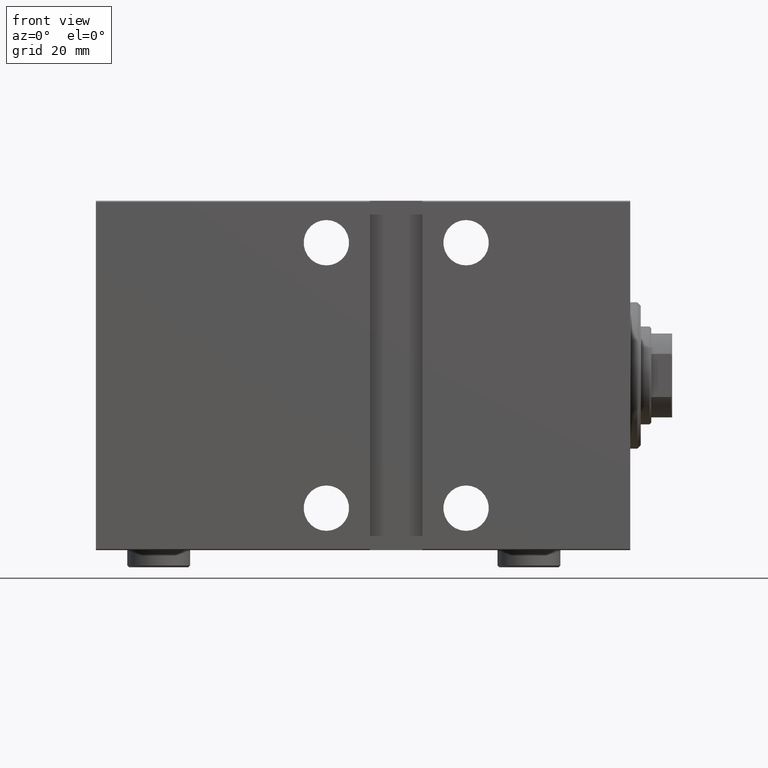
[diagram: clean part render]
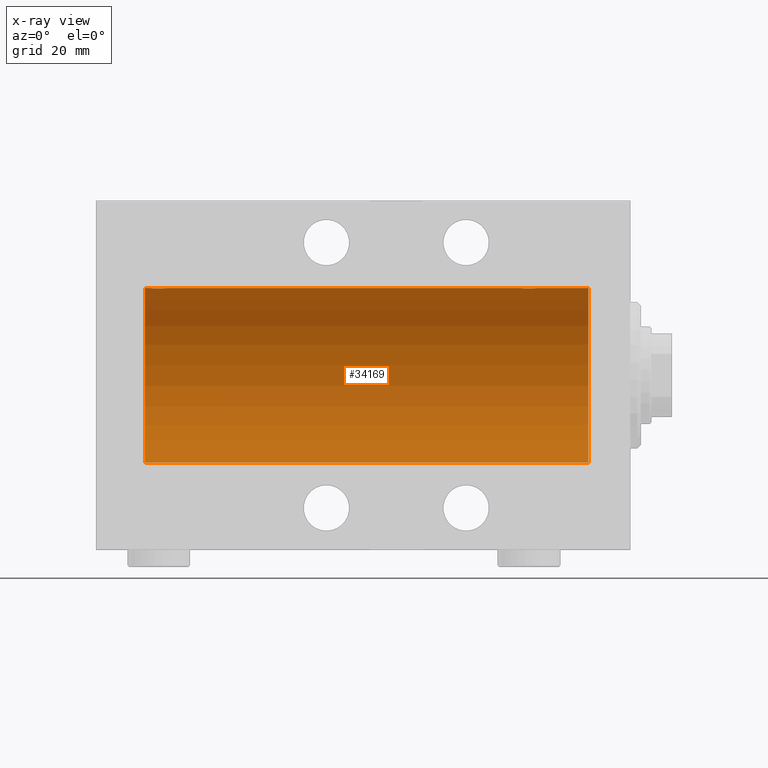
[diagram: x-ray — body ghosted, one internal face saturated and labeled with its STEP entity id]
A machine part, front view, then the same camera in x-ray: the body is ghosted and one INTERNAL B-rep face — a face not visible from any outside direction — is saturated and labeled: STEP entity #34169.
In plain terms, the highlighted cylindrical surface (partial cylindrical patch) has radius 25 mm, axis along (1, 0, -0).
Its self-contained STEP definition (entity closure, byte-faithful):
#185 = VERTEX_POINT ( 'NONE', #43905 ) ;
#779 = CARTESIAN_POINT ( 'NONE',  ( 27.01250184165601809, -1.525407911884361756, 24.95379469572361586 ) ) ;
#1077 = B_SPLINE_CURVE_WITH_KNOTS ( 'NONE', 3,
 ( #18398, #4938, #18615, #32309, #1564, #11898, #25552, #39235, #8530, #43920, #20122, #30244, #17002, #3309, #22841, #40540, #27081, #36751, #23284, #9406, #36534, #16784, #19477, #40325, #26638, #30688, #13199, #12764, #6024, #36968, #6241, #19906 ),
 .UNSPECIFIED., .F., .F.,
 ( 4, 2, 2, 2, 2, 2, 2, 2, 2, 2, 2, 2, 2, 2, 2, 4 ),
 ( 0.007821024441662306759, 0.008309723826317914896, 0.008798423210973523034, 0.009287122595629131172, 0.009775821980284739310, 0.01026452136494034745, 0.01075322074959595559, 0.01124192013425156372, 0.01173061951890717186, 0.01221931890356278000, 0.01270801828821838814, 0.01319671767287399627, 0.01368541705752960441, 0.01417411644218521255, 0.01466281582684082069, 0.01564021459615200227 ),
 .UNSPECIFIED. ) ;
#1525 = VERTEX_POINT ( 'NONE', #41153 ) ;
#1564 = CARTESIAN_POINT ( 'NONE',  ( 132.6278403059139919, -0.8058335233485485194, 24.98746277938383642 ) ) ;
#1761 = DIRECTION ( 'NONE',  ( -1.000000000000000000, -0.000000000000000000, -0.000000000000000000 ) ) ;
#1869 = CARTESIAN_POINT ( 'NONE',  ( 29.64560666148631896, -2.420689345803753501, 24.88254961038874313 ) ) ;
#2627 = CARTESIAN_POINT ( 'NONE',  ( 12.00000000000001066, 3.061616997868383043E-15, -25.00000000000000000 ) ) ;
#2803 = VERTEX_POINT ( 'NONE', #21111 ) ;
#3309 = CARTESIAN_POINT ( 'NONE',  ( 134.1921165759419239, -2.371528299825738539, 24.88734287464371064 ) ) ;
#4619 = ORIENTED_EDGE ( 'NONE', *, *, #33017, .F. ) ;
#4938 = CARTESIAN_POINT ( 'NONE',  ( 132.4999999999999716, -0.1631750940176176501, 25.00000000000000711 ) ) ;
#5227 = CARTESIAN_POINT ( 'NONE',  ( 139.0000000000000000, 0.000000000000000000, 25.00000000000000000 ) ) ;
#5244 = CARTESIAN_POINT ( 'NONE',  ( 31.43349355239747567, -0.6588655613945901823, 24.99312727339969697 ) ) ;
#5918 = ORIENTED_EDGE ( 'NONE', *, *, #21742, .T. ) ;
#5952 = VECTOR ( 'NONE', #19901, 1000.000000000000000 ) ;
#6024 = CARTESIAN_POINT ( 'NONE',  ( 137.2460637909406671, -1.109818057797406832, 24.97580694515542277 ) ) ;
#6052 = LINE ( 'NONE', #30275, #25298 ) ;
#6241 = CARTESIAN_POINT ( 'NONE',  ( 137.5000000000000284, -0.3305063766663746128, 25.00000000000000711 ) ) ;
#6256 = ORIENTED_EDGE ( 'NONE', *, *, #36042, .F. ) ;
#6750 = EDGE_LOOP ( 'NONE', ( #4619, #5918, #8391, #18521, #14106, #6256, #20554, #20244 ) ) ;
#7862 = VERTEX_POINT ( 'NONE', #2627 ) ;
#8315 = EDGE_CURVE ( 'NONE', #1525, #2803, #24976, .T. ) ;
#8391 = ORIENTED_EDGE ( 'NONE', *, *, #17234, .T. ) ;
#8530 = CARTESIAN_POINT ( 'NONE',  ( 133.1158761721353017, -1.651251241585098395, 24.94567559498349141 ) ) ;
#8614 = VERTEX_POINT ( 'NONE', #25382 ) ;
#9058 = CARTESIAN_POINT ( 'NONE',  ( 29.16323589638542657, -2.500125740978187849, 24.87467329022545570 ) ) ;
#9406 = CARTESIAN_POINT ( 'NONE',  ( 135.6456066614863403, -2.420689345803753501, 24.88254961038873603 ) ) ;
#9626 = LINE ( 'NONE', #23715, #5952 ) ;
#10233 = EDGE_CURVE ( 'NONE', #8614, #185, #29671, .T. ) ;
#10901 = CARTESIAN_POINT ( 'NONE',  ( 26.82988709719076681, -1.252049606094334910, 24.96900299967627390 ) ) ;
#11125 = CARTESIAN_POINT ( 'NONE',  ( 28.19211657594194520, -2.371528299825740760, 24.88734287464371420 ) ) ;
#11342 = CARTESIAN_POINT ( 'NONE',  ( 26.62784030591393147, -0.8058335233485444116, 24.98746277938383642 ) ) ;
#11776 = CARTESIAN_POINT ( 'NONE',  ( 30.65121133559111755, -1.884161199660612906, 24.92916496727982434 ) ) ;
#11898 = CARTESIAN_POINT ( 'NONE',  ( 132.7523974898045083, -1.106703319666884733, 24.97594585958023217 ) ) ;
#11989 = CARTESIAN_POINT ( 'NONE',  ( 28.83293504821939024, -2.499872792855073467, 24.87469871246082675 ) ) ;
#12764 = CARTESIAN_POINT ( 'NONE',  ( 137.1682764149395268, -1.255214705003177889, 24.96884293994577320 ) ) ;
#13015 = DIRECTION ( 'NONE',  ( 0.000000000000000000, 0.000000000000000000, 1.000000000000000000 ) ) ;
#13199 = CARTESIAN_POINT ( 'NONE',  ( 136.9853803371709375, -1.528152964861306584, 24.95362559291379156 ) ) ;
#14106 = ORIENTED_EDGE ( 'NONE', *, *, #8315, .T. ) ;
#14256 = CARTESIAN_POINT ( 'NONE',  ( 26.75239748980449406, -1.106703319666880514, 24.97594585958024282 ) ) ;
#14311 = VECTOR ( 'NONE', #1761, 1000.000000000000000 ) ;
#14482 = CARTESIAN_POINT ( 'NONE',  ( 27.34616663850663087, -1.881857718844711869, 24.92933960374833902 ) ) ;
#14626 = AXIS2_PLACEMENT_3D ( 'NONE', #15455, #26394, #39643 ) ;
#15144 = CARTESIAN_POINT ( 'NONE',  ( 26.50000000000000355, -1.940518940753166940E-23, 25.00000000000000000 ) ) ;
#15455 = CARTESIAN_POINT ( 'NONE',  ( 139.0000000000000000, 0.000000000000000000, 0.000000000000000000 ) ) ;
#16010 = CARTESIAN_POINT ( 'NONE',  ( 30.98538033717094464, -1.528152964861309915, 24.95362559291378801 ) ) ;
#16191 = VERTEX_POINT ( 'NONE', #26782 ) ;
#16784 = CARTESIAN_POINT ( 'NONE',  ( 136.1072384583841313, -2.247417070759885060, 24.89885693081946982 ) ) ;
#17002 = CARTESIAN_POINT ( 'NONE',  ( 133.8896320349114148, -2.245863995402891611, 24.89899750494197761 ) ) ;
#17234 = EDGE_CURVE ( 'NONE', #7862, #17861, #40782, .T. ) ;
#17608 = CARTESIAN_POINT ( 'NONE',  ( 27.47463817756919724, -1.987446652080258724, 24.92104239223420947 ) ) ;
#17861 = VERTEX_POINT ( 'NONE', #27526 ) ;
#18174 = CIRCLE ( 'NONE', #43214, 25.00000000000000000 ) ;
#18398 = CARTESIAN_POINT ( 'NONE',  ( 132.5000000000000000, -1.941505016884693205E-23, 25.00000000000000000 ) ) ;
#18521 = ORIENTED_EDGE ( 'NONE', *, *, #33082, .F. ) ;
#18615 = CARTESIAN_POINT ( 'NONE',  ( 132.5158215994234752, -0.3254210271412192879, 24.99840249400844527 ) ) ;
#19130 = CARTESIAN_POINT ( 'NONE',  ( 29.32596570039460104, -2.484007091859757654, 24.87630842367763861 ) ) ;
#19477 = CARTESIAN_POINT ( 'NONE',  ( 136.2508402392405458, -2.170728182476716839, 24.90574631553725027 ) ) ;
#19901 = DIRECTION ( 'NONE',  ( -1.000000000000000000, -0.000000000000000000, -0.000000000000000000 ) ) ;
#19906 = CARTESIAN_POINT ( 'NONE',  ( 137.5000000000000000, 9.792438154224103788E-16, 25.00000000000000000 ) ) ;
#20122 = CARTESIAN_POINT ( 'NONE',  ( 133.4746381775692043, -1.987446652080248732, 24.92104239223420592 ) ) ;
#20244 = ORIENTED_EDGE ( 'NONE', *, *, #10233, .F. ) ;
#20554 = ORIENTED_EDGE ( 'NONE', *, *, #26821, .T. ) ;
#20697 = VECTOR ( 'NONE', #43341, 1000.000000000000000 ) ;
#20700 = AXIS2_PLACEMENT_3D ( 'NONE', #39991, #25651, #39335 ) ;
#21111 = CARTESIAN_POINT ( 'NONE',  ( 31.50000000000000000, -6.470145921101463186E-15, 25.00000000000000000 ) ) ;
#21742 = EDGE_CURVE ( 'NONE', #16191, #7862, #42601, .T. ) ;
#22841 = CARTESIAN_POINT ( 'NONE',  ( 134.3509560983090978, -2.419770561643896922, 24.88263927071751880 ) ) ;
#23284 = CARTESIAN_POINT ( 'NONE',  ( 135.3259657003945904, -2.484007091859755434, 24.87630842367763151 ) ) ;
#23715 = CARTESIAN_POINT ( 'NONE',  ( 139.0000000000000000, 0.000000000000000000, 25.00000000000000000 ) ) ;
#24976 = B_SPLINE_CURVE_WITH_KNOTS ( 'NONE', 3,
 ( #15144, #28368, #31528, #34654, #11342, #14256, #10901, #779, #38461, #14482, #17608, #27915, #41834, #11125, #35970, #39114, #11989, #9058, #19130, #1869, #42926, #26082, #32834, #39770, #11776, #29691, #16010, #29245, #35760, #5244, #25646, #36626 ),
 .UNSPECIFIED., .F., .F.,
 ( 4, 2, 2, 2, 2, 2, 2, 2, 2, 2, 2, 2, 2, 2, 2, 4 ),
 ( 0.007821024441662268595, 0.008309723826317871528, 0.008798423210973474462, 0.009287122595629077396, 0.009775821980284680329, 0.01026452136494028326, 0.01075322074959588620, 0.01124192013425148913, 0.01173061951890709206, 0.01221931890356269326, 0.01270801828821829793, 0.01319671767287389913, 0.01368541705752950380, 0.01417411644218510500, 0.01466281582684070967, 0.01564021459615191553 ),
 .UNSPECIFIED. ) ;
#25298 = VECTOR ( 'NONE', #40566, 1000.000000000000000 ) ;
#25382 = CARTESIAN_POINT ( 'NONE',  ( 139.0000000000000000, 0.000000000000000000, 25.00000000000000000 ) ) ;
#25552 = CARTESIAN_POINT ( 'NONE',  ( 132.8298870971908059, -1.252049606094330914, 24.96900299967627745 ) ) ;
#25646 = CARTESIAN_POINT ( 'NONE',  ( 31.49999999999996447, -0.3305063766663697833, 24.99999999999999645 ) ) ;
#25651 = DIRECTION ( 'NONE',  ( -1.000000000000000000, 0.000000000000000000, 0.000000000000000000 ) ) ;
#26082 = CARTESIAN_POINT ( 'NONE',  ( 30.10723845838409929, -2.247417070759890834, 24.89885693081946272 ) ) ;
#26394 = DIRECTION ( 'NONE',  ( -1.000000000000000000, -0.000000000000000000, -0.000000000000000000 ) ) ;
#26638 = CARTESIAN_POINT ( 'NONE',  ( 136.6512113355911140, -1.884161199660612240, 24.92916496727982079 ) ) ;
#26782 = CARTESIAN_POINT ( 'NONE',  ( 139.0000000000000000, 3.061616997868383043E-15, -25.00000000000000000 ) ) ;
#26821 = EDGE_CURVE ( 'NONE', #38100, #185, #1077, .T. ) ;
#27081 = CARTESIAN_POINT ( 'NONE',  ( 134.8329350482193831, -2.499872792855069470, 24.87469871246082675 ) ) ;
#27526 = CARTESIAN_POINT ( 'NONE',  ( 12.00000000000001066, 0.000000000000000000, 25.00000000000000000 ) ) ;
#27915 = CARTESIAN_POINT ( 'NONE',  ( 27.74616804575498108, -2.169003991399864439, 24.90589728951138682 ) ) ;
#28368 = CARTESIAN_POINT ( 'NONE',  ( 26.50000000000000711, -0.1631750940176204812, 25.00000000000000711 ) ) ;
#29245 = CARTESIAN_POINT ( 'NONE',  ( 31.16827641493956591, -1.255214705003181441, 24.96884293994578030 ) ) ;
#29671 = LINE ( 'NONE', #5227, #20697 ) ;
#29691 = CARTESIAN_POINT ( 'NONE',  ( 30.88185954148645251, -1.653834020452935816, 24.94550385189585029 ) ) ;
#30244 = CARTESIAN_POINT ( 'NONE',  ( 133.7461680457550131, -2.169003991399856890, 24.90589728951138682 ) ) ;
#30275 = CARTESIAN_POINT ( 'NONE',  ( 139.0000000000000000, 0.000000000000000000, 25.00000000000000000 ) ) ;
#30688 = CARTESIAN_POINT ( 'NONE',  ( 136.8818595414864205, -1.653834020452934483, 24.94550385189584318 ) ) ;
#31528 = CARTESIAN_POINT ( 'NONE',  ( 26.51582159942343253, -0.3254210271412220079, 24.99840249400844527 ) ) ;
#32309 = CARTESIAN_POINT ( 'NONE',  ( 132.5798509077906999, -0.6480119923854186226, 24.99212088949390420 ) ) ;
#32834 = CARTESIAN_POINT ( 'NONE',  ( 30.25084023924055288, -2.170728182476714174, 24.90574631553725027 ) ) ;
#32933 = FACE_OUTER_BOUND ( 'NONE', #6750, .T. ) ;
#33017 = EDGE_CURVE ( 'NONE', #16191, #8614, #18174, .T. ) ;
#33082 = EDGE_CURVE ( 'NONE', #1525, #17861, #6052, .T. ) ;
#34169 = ADVANCED_FACE ( 'NONE', ( #32933 ), #43235, .F. ) ;
#34654 = CARTESIAN_POINT ( 'NONE',  ( 26.57985090779070703, -0.6480119923854216202, 24.99212088949391131 ) ) ;
#35760 = CARTESIAN_POINT ( 'NONE',  ( 31.24606379094066710, -1.109818057797416824, 24.97580694515542632 ) ) ;
#35970 = CARTESIAN_POINT ( 'NONE',  ( 28.35095609830903740, -2.419770561643901363, 24.88263927071751169 ) ) ;
#36042 = EDGE_CURVE ( 'NONE', #38100, #2803, #9626, .T. ) ;
#36534 = CARTESIAN_POINT ( 'NONE',  ( 135.8043566091629941, -2.372734907014162786, 24.88722742718433167 ) ) ;
#36626 = CARTESIAN_POINT ( 'NONE',  ( 31.50000000000000000, -6.470145921101463186E-15, 25.00000000000000000 ) ) ;
#36751 = CARTESIAN_POINT ( 'NONE',  ( 135.1632358963854585, -2.500125740978183853, 24.87467329022545570 ) ) ;
#36968 = CARTESIAN_POINT ( 'NONE',  ( 137.4334935523974934, -0.6588655613945783029, 24.99312727339971119 ) ) ;
#38100 = VERTEX_POINT ( 'NONE', #39833 ) ;
#38461 = CARTESIAN_POINT ( 'NONE',  ( 27.11587617213528389, -1.651251241585097063, 24.94567559498348430 ) ) ;
#39114 = CARTESIAN_POINT ( 'NONE',  ( 28.67052319885732103, -2.483544361357262531, 24.87635491893501793 ) ) ;
#39235 = CARTESIAN_POINT ( 'NONE',  ( 133.0125018416560465, -1.525407911884357093, 24.95379469572362297 ) ) ;
#39335 = DIRECTION ( 'NONE',  ( 0.000000000000000000, 0.000000000000000000, 1.000000000000000000 ) ) ;
#39643 = DIRECTION ( 'NONE',  ( 0.000000000000000000, 0.000000000000000000, 1.000000000000000000 ) ) ;
#39770 = CARTESIAN_POINT ( 'NONE',  ( 30.52256774340189338, -1.989585286700240596, 24.92087098724766747 ) ) ;
#39833 = CARTESIAN_POINT ( 'NONE',  ( 132.5000000000000000, -1.941505016884693205E-23, 25.00000000000000000 ) ) ;
#39991 = CARTESIAN_POINT ( 'NONE',  ( 12.00000000000001066, 0.000000000000000000, 0.000000000000000000 ) ) ;
#40325 = CARTESIAN_POINT ( 'NONE',  ( 136.5225677434019076, -1.989585286700244149, 24.92087098724766037 ) ) ;
#40540 = CARTESIAN_POINT ( 'NONE',  ( 134.6705231988572962, -2.483544361357258978, 24.87635491893502149 ) ) ;
#40566 = DIRECTION ( 'NONE',  ( -1.000000000000000000, -0.000000000000000000, -0.000000000000000000 ) ) ;
#40782 = CIRCLE ( 'NONE', #20700, 25.00000000000000000 ) ;
#41153 = CARTESIAN_POINT ( 'NONE',  ( 26.50000000000000355, -1.940518940753166940E-23, 25.00000000000000000 ) ) ;
#41834 = CARTESIAN_POINT ( 'NONE',  ( 27.88963203491136511, -2.245863995402893831, 24.89899750494197406 ) ) ;
#42601 = LINE ( 'NONE', #43242, #14311 ) ;
#42926 = CARTESIAN_POINT ( 'NONE',  ( 29.80435660916301543, -2.372734907014168115, 24.88722742718433878 ) ) ;
#43214 = AXIS2_PLACEMENT_3D ( 'NONE', #43733, #43512, #13015 ) ;
#43235 = CYLINDRICAL_SURFACE ( 'NONE', #14626, 25.00000000000000000 ) ;
#43242 = CARTESIAN_POINT ( 'NONE',  ( 139.0000000000000000, 3.061616997868383043E-15, -25.00000000000000000 ) ) ;
#43341 = DIRECTION ( 'NONE',  ( -1.000000000000000000, -0.000000000000000000, -0.000000000000000000 ) ) ;
#43512 = DIRECTION ( 'NONE',  ( -1.000000000000000000, 0.000000000000000000, 0.000000000000000000 ) ) ;
#43733 = CARTESIAN_POINT ( 'NONE',  ( 139.0000000000000000, 0.000000000000000000, 0.000000000000000000 ) ) ;
#43905 = CARTESIAN_POINT ( 'NONE',  ( 137.5000000000000000, 9.792438154224103788E-16, 25.00000000000000000 ) ) ;
#43920 = CARTESIAN_POINT ( 'NONE',  ( 133.3461666385065882, -1.881857718844712313, 24.92933960374834257 ) ) ;